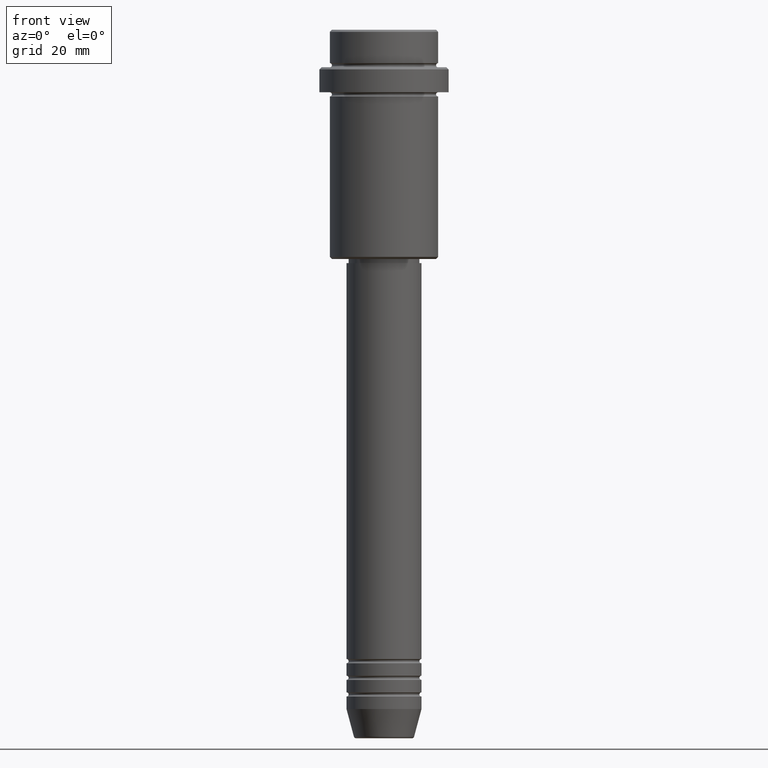
[diagram: clean part render]
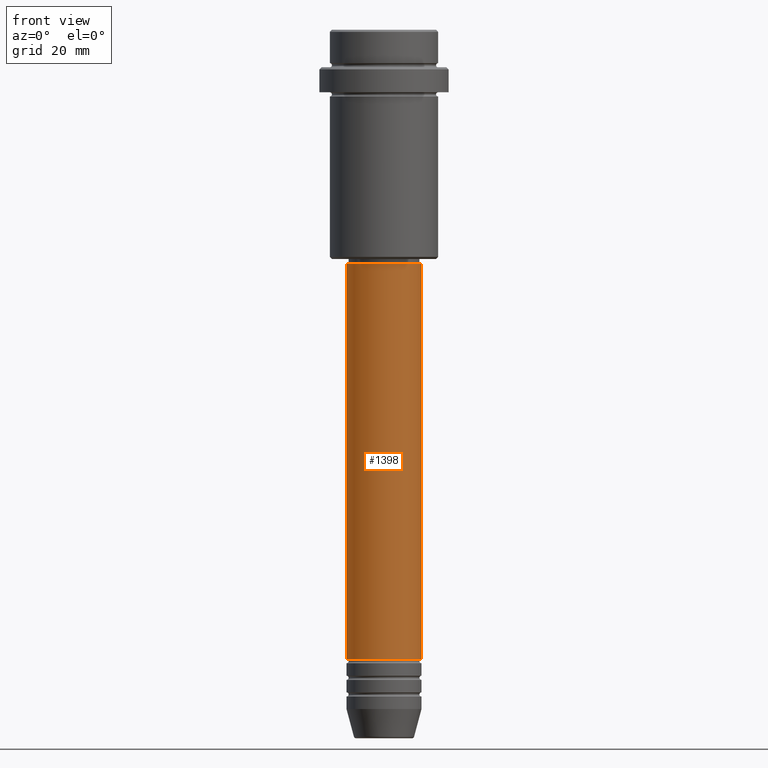
[diagram: same view with one face highlighted and labeled with its STEP entity id]
A machine part, front view. The second image highlights one B-rep face of the part: STEP entity #1398.
In plain terms, the highlighted cylindrical surface (partial cylindrical patch) has radius 9 mm, axis along (-0, -0, 1).
Its self-contained STEP definition (entity closure, byte-faithful):
#53 = CARTESIAN_POINT ( 'NONE',  ( 9.000000000000001776, 0.000000000000000000, 0.000000000000000000 ) ) ;
#155 = CARTESIAN_POINT ( 'NONE',  ( -9.000000000000001776, 1.102182119232617911E-15, -55.99999999999998579 ) ) ;
#182 = ORIENTED_EDGE ( 'NONE', *, *, #658, .F. ) ;
#225 = DIRECTION ( 'NONE',  ( -0.000000000000000000, -0.000000000000000000, 1.000000000000000000 ) ) ;
#228 = ORIENTED_EDGE ( 'NONE', *, *, #369, .T. ) ;
#243 = DIRECTION ( 'NONE',  ( -0.000000000000000000, -0.000000000000000000, 1.000000000000000000 ) ) ;
#295 = CARTESIAN_POINT ( 'NONE',  ( 0.000000000000000000, 0.000000000000000000, 0.000000000000000000 ) ) ;
#304 = FACE_OUTER_BOUND ( 'NONE', #1206, .T. ) ;
#306 = CARTESIAN_POINT ( 'NONE',  ( 0.000000000000000000, 0.000000000000000000, -55.99999999999998579 ) ) ;
#315 = CIRCLE ( 'NONE', #556, 9.000000000000001776 ) ;
#316 = EDGE_CURVE ( 'NONE', #1405, #1396, #1003, .T. ) ;
#360 = DIRECTION ( 'NONE',  ( -0.000000000000000000, -0.000000000000000000, 1.000000000000000000 ) ) ;
#364 = ORIENTED_EDGE ( 'NONE', *, *, #549, .T. ) ;
#369 = EDGE_CURVE ( 'NONE', #1405, #1384, #1276, .T. ) ;
#379 = DIRECTION ( 'NONE',  ( -0.000000000000000000, -0.000000000000000000, 1.000000000000000000 ) ) ;
#459 = AXIS2_PLACEMENT_3D ( 'NONE', #295, #527, #536 ) ;
#505 = CARTESIAN_POINT ( 'NONE',  ( -9.000000000000000000, 1.102182119232617714E-15, -150.9999999999998579 ) ) ;
#518 = DIRECTION ( 'NONE',  ( 1.000000000000000000, 0.000000000000000000, 0.000000000000000000 ) ) ;
#527 = DIRECTION ( 'NONE',  ( -0.000000000000000000, -0.000000000000000000, 1.000000000000000000 ) ) ;
#536 = DIRECTION ( 'NONE',  ( 1.000000000000000000, 0.000000000000000000, 0.000000000000000000 ) ) ;
#549 = EDGE_CURVE ( 'NONE', #1384, #884, #1157, .T. ) ;
#556 = AXIS2_PLACEMENT_3D ( 'NONE', #306, #379, #518 ) ;
#639 = CYLINDRICAL_SURFACE ( 'NONE', #459, 9.000000000000001776 ) ;
#658 = EDGE_CURVE ( 'NONE', #1396, #884, #315, .T. ) ;
#772 = CARTESIAN_POINT ( 'NONE',  ( 0.000000000000000000, 0.000000000000000000, -150.9999999999998579 ) ) ;
#872 = DIRECTION ( 'NONE',  ( 1.000000000000000000, 0.000000000000000000, 0.000000000000000000 ) ) ;
#884 = VERTEX_POINT ( 'NONE', #1207 ) ;
#894 = CARTESIAN_POINT ( 'NONE',  ( -9.000000000000001776, 1.102182119232617911E-15, 0.000000000000000000 ) ) ;
#950 = VECTOR ( 'NONE', #360, 1000.000000000000000 ) ;
#1003 = LINE ( 'NONE', #894, #1298 ) ;
#1157 = LINE ( 'NONE', #53, #950 ) ;
#1182 = AXIS2_PLACEMENT_3D ( 'NONE', #772, #243, #872 ) ;
#1206 = EDGE_LOOP ( 'NONE', ( #1295, #228, #364, #182 ) ) ;
#1207 = CARTESIAN_POINT ( 'NONE',  ( 9.000000000000001776, 0.000000000000000000, -55.99999999999998579 ) ) ;
#1276 = CIRCLE ( 'NONE', #1182, 9.000000000000000000 ) ;
#1295 = ORIENTED_EDGE ( 'NONE', *, *, #316, .F. ) ;
#1298 = VECTOR ( 'NONE', #225, 1000.000000000000000 ) ;
#1384 = VERTEX_POINT ( 'NONE', #1388 ) ;
#1388 = CARTESIAN_POINT ( 'NONE',  ( 9.000000000000000000, 0.000000000000000000, -150.9999999999998579 ) ) ;
#1396 = VERTEX_POINT ( 'NONE', #155 ) ;
#1398 = ADVANCED_FACE ( 'NONE', ( #304 ), #639, .T. ) ;
#1405 = VERTEX_POINT ( 'NONE', #505 ) ;